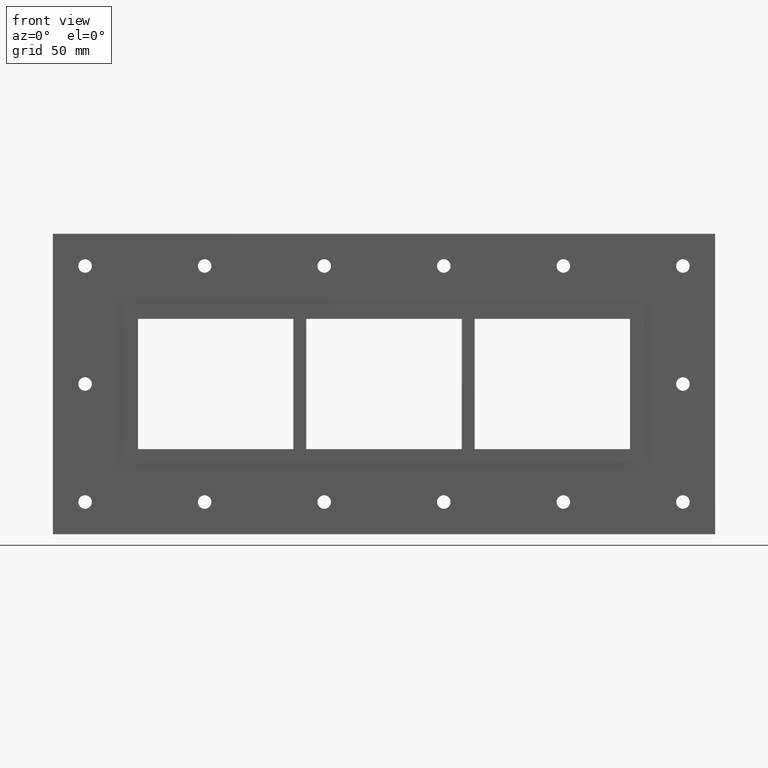
[diagram: clean part render]
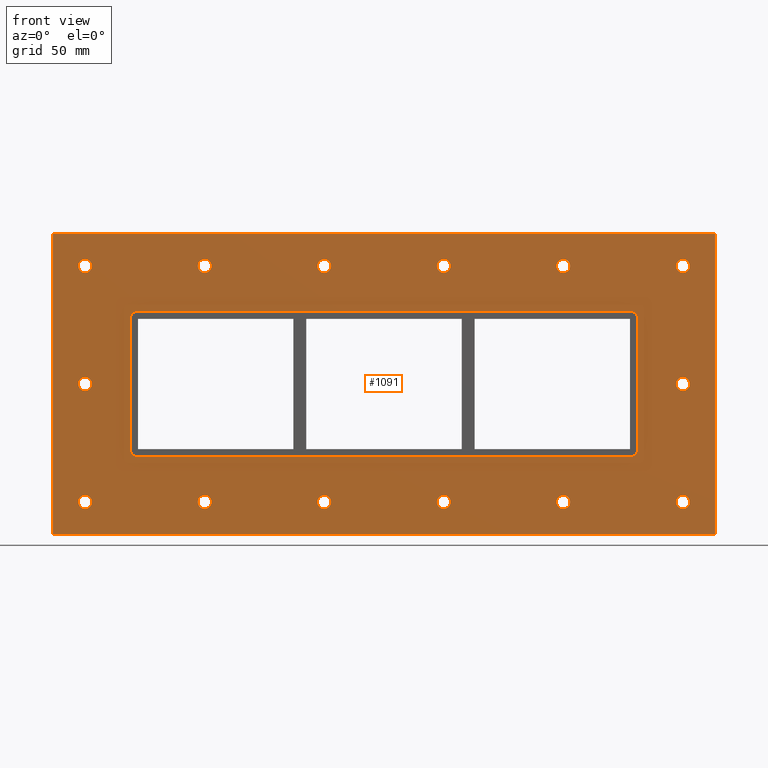
[diagram: same view with one face highlighted and labeled with its STEP entity id]
A machine part, front view. The second image highlights one B-rep face of the part: STEP entity #1091.
In plain terms, the highlighted planar face has unit normal (0, 1, 0).
Its self-contained STEP definition (entity closure, byte-faithful):
#84=CARTESIAN_POINT('',(-226.5000000000002,0.0,-91.499999999999986));
#85=VERTEX_POINT('',#84);
#86=CARTESIAN_POINT('',(-231.75000000000017,0.0,-91.499999999999986));
#87=DIRECTION('',(0.0,1.0,0.0));
#88=DIRECTION('',(1.0,0.0,0.0));
#89=AXIS2_PLACEMENT_3D('',#86,#87,#88);
#90=CIRCLE('',#89,5.25);
#91=EDGE_CURVE('',#85,#85,#90,.T.);
#112=CARTESIAN_POINT('',(236.99999999999989,0.0,1.776357E-014));
#113=VERTEX_POINT('',#112);
#114=CARTESIAN_POINT('',(231.74999999999989,0.0,1.776357E-014));
#115=DIRECTION('',(0.0,1.0,0.0));
#116=DIRECTION('',(1.0,0.0,0.0));
#117=AXIS2_PLACEMENT_3D('',#114,#115,#116);
#118=CIRCLE('',#117,5.25);
#119=EDGE_CURVE('',#113,#113,#118,.T.);
#140=CARTESIAN_POINT('',(-226.5000000000002,0.0,1.776357E-014));
#141=VERTEX_POINT('',#140);
#142=CARTESIAN_POINT('',(-231.75000000000017,0.0,1.776357E-014));
#143=DIRECTION('',(0.0,1.0,0.0));
#144=DIRECTION('',(1.0,0.0,0.0));
#145=AXIS2_PLACEMENT_3D('',#142,#143,#144);
#146=CIRCLE('',#145,5.25);
#147=EDGE_CURVE('',#141,#141,#146,.T.);
#168=CARTESIAN_POINT('',(-133.80000000000015,0.0,91.500000000000028));
#169=VERTEX_POINT('',#168);
#170=CARTESIAN_POINT('',(-139.05000000000013,0.0,91.500000000000028));
#171=DIRECTION('',(0.0,1.0,0.0));
#172=DIRECTION('',(1.0,0.0,0.0));
#173=AXIS2_PLACEMENT_3D('',#170,#171,#172);
#174=CIRCLE('',#173,5.25);
#175=EDGE_CURVE('',#169,#169,#174,.T.);
#196=CARTESIAN_POINT('',(-133.80000000000015,0.0,-91.499999999999986));
#197=VERTEX_POINT('',#196);
#198=CARTESIAN_POINT('',(-139.05000000000013,0.0,-91.499999999999986));
#199=DIRECTION('',(0.0,1.0,0.0));
#200=DIRECTION('',(1.0,0.0,0.0));
#201=AXIS2_PLACEMENT_3D('',#198,#199,#200);
#202=CIRCLE('',#201,5.25);
#203=EDGE_CURVE('',#197,#197,#202,.T.);
#224=CARTESIAN_POINT('',(-41.100000000000122,0.0,91.500000000000028));
#225=VERTEX_POINT('',#224);
#226=CARTESIAN_POINT('',(-46.350000000000108,0.0,91.500000000000028));
#227=DIRECTION('',(0.0,1.0,0.0));
#228=DIRECTION('',(1.0,0.0,0.0));
#229=AXIS2_PLACEMENT_3D('',#226,#227,#228);
#230=CIRCLE('',#229,5.25);
#231=EDGE_CURVE('',#225,#225,#230,.T.);
#252=CARTESIAN_POINT('',(-41.100000000000122,0.0,-91.499999999999986));
#253=VERTEX_POINT('',#252);
#254=CARTESIAN_POINT('',(-46.350000000000108,0.0,-91.499999999999986));
#255=DIRECTION('',(0.0,1.0,0.0));
#256=DIRECTION('',(1.0,0.0,0.0));
#257=AXIS2_PLACEMENT_3D('',#254,#255,#256);
#258=CIRCLE('',#257,5.25);
#259=EDGE_CURVE('',#253,#253,#258,.T.);
#280=CARTESIAN_POINT('',(51.599999999999859,0.0,91.500000000000028));
#281=VERTEX_POINT('',#280);
#282=CARTESIAN_POINT('',(46.349999999999874,0.0,91.500000000000028));
#283=DIRECTION('',(0.0,1.0,0.0));
#284=DIRECTION('',(1.0,0.0,0.0));
#285=AXIS2_PLACEMENT_3D('',#282,#283,#284);
#286=CIRCLE('',#285,5.25);
#287=EDGE_CURVE('',#281,#281,#286,.T.);
#308=CARTESIAN_POINT('',(51.599999999999859,0.0,-91.499999999999986));
#309=VERTEX_POINT('',#308);
#310=CARTESIAN_POINT('',(46.349999999999874,0.0,-91.499999999999986));
#311=DIRECTION('',(0.0,1.0,0.0));
#312=DIRECTION('',(1.0,0.0,0.0));
#313=AXIS2_PLACEMENT_3D('',#310,#311,#312);
#314=CIRCLE('',#313,5.25);
#315=EDGE_CURVE('',#309,#309,#314,.T.);
#336=CARTESIAN_POINT('',(144.29999999999987,0.0,91.500000000000028));
#337=VERTEX_POINT('',#336);
#338=CARTESIAN_POINT('',(139.0499999999999,0.0,91.500000000000028));
#339=DIRECTION('',(0.0,1.0,0.0));
#340=DIRECTION('',(1.0,0.0,0.0));
#341=AXIS2_PLACEMENT_3D('',#338,#339,#340);
#342=CIRCLE('',#341,5.25);
#343=EDGE_CURVE('',#337,#337,#342,.T.);
#364=CARTESIAN_POINT('',(144.29999999999987,0.0,-91.499999999999986));
#365=VERTEX_POINT('',#364);
#366=CARTESIAN_POINT('',(139.0499999999999,0.0,-91.499999999999986));
#367=DIRECTION('',(0.0,1.0,0.0));
#368=DIRECTION('',(1.0,0.0,0.0));
#369=AXIS2_PLACEMENT_3D('',#366,#367,#368);
#370=CIRCLE('',#369,5.25);
#371=EDGE_CURVE('',#365,#365,#370,.T.);
#392=CARTESIAN_POINT('',(236.99999999999989,0.0,-91.499999999999986));
#393=VERTEX_POINT('',#392);
#394=CARTESIAN_POINT('',(231.74999999999989,0.0,-91.499999999999986));
#395=DIRECTION('',(0.0,1.0,0.0));
#396=DIRECTION('',(1.0,0.0,0.0));
#397=AXIS2_PLACEMENT_3D('',#394,#395,#396);
#398=CIRCLE('',#397,5.25);
#399=EDGE_CURVE('',#393,#393,#398,.T.);
#420=CARTESIAN_POINT('',(-226.5000000000002,0.0,91.500000000000028));
#421=VERTEX_POINT('',#420);
#422=CARTESIAN_POINT('',(-231.75000000000017,0.0,91.500000000000028));
#423=DIRECTION('',(0.0,1.0,0.0));
#424=DIRECTION('',(1.0,0.0,0.0));
#425=AXIS2_PLACEMENT_3D('',#422,#423,#424);
#426=CIRCLE('',#425,5.25);
#427=EDGE_CURVE('',#421,#421,#426,.T.);
#448=CARTESIAN_POINT('',(236.99999999999989,0.0,91.500000000000028));
#449=VERTEX_POINT('',#448);
#450=CARTESIAN_POINT('',(231.74999999999989,0.0,91.500000000000028));
#451=DIRECTION('',(0.0,1.0,0.0));
#452=DIRECTION('',(1.0,0.0,0.0));
#453=AXIS2_PLACEMENT_3D('',#450,#451,#452);
#454=CIRCLE('',#453,5.25);
#455=EDGE_CURVE('',#449,#449,#454,.T.);
#940=CARTESIAN_POINT('',(-2.855497E-014,0.0,-5.710993E-015));
#941=DIRECTION('',(0.0,1.0,0.0));
#942=DIRECTION('',(0.0,0.0,1.0));
#943=AXIS2_PLACEMENT_3D('',#940,#941,#942);
#944=PLANE('',#943);
#945=CARTESIAN_POINT('',(-256.75000000000006,0.0,116.49999999999997));
#946=VERTEX_POINT('',#945);
#947=CARTESIAN_POINT('',(256.75,0.0,116.49999999999997));
#948=VERTEX_POINT('',#947);
#949=CARTESIAN_POINT('',(-256.75000000000006,0.0,116.49999999999997));
#950=DIRECTION('',(1.0,0.0,0.0));
#951=VECTOR('',#950,513.50000000000011);
#952=LINE('',#949,#951);
#953=EDGE_CURVE('',#946,#948,#952,.T.);
#954=ORIENTED_EDGE('',*,*,#953,.F.);
#955=CARTESIAN_POINT('',(-256.75000000000006,0.0,-116.49999999999999));
#956=VERTEX_POINT('',#955);
#957=CARTESIAN_POINT('',(-256.75000000000006,0.0,-116.49999999999999));
#958=DIRECTION('',(0.0,0.0,1.0));
#959=VECTOR('',#958,232.99999999999997);
#960=LINE('',#957,#959);
#961=EDGE_CURVE('',#956,#946,#960,.T.);
#962=ORIENTED_EDGE('',*,*,#961,.F.);
#963=CARTESIAN_POINT('',(256.75,0.0,-116.49999999999999));
#964=VERTEX_POINT('',#963);
#965=CARTESIAN_POINT('',(256.75,0.0,-116.49999999999999));
#966=DIRECTION('',(-1.0,0.0,0.0));
#967=VECTOR('',#966,513.50000000000011);
#968=LINE('',#965,#967);
#969=EDGE_CURVE('',#964,#956,#968,.T.);
#970=ORIENTED_EDGE('',*,*,#969,.F.);
#971=CARTESIAN_POINT('',(256.75,0.0,116.49999999999997));
#972=DIRECTION('',(0.0,0.0,-1.0));
#973=VECTOR('',#972,232.99999999999997);
#974=LINE('',#971,#973);
#975=EDGE_CURVE('',#948,#964,#974,.T.);
#976=ORIENTED_EDGE('',*,*,#975,.F.);
#977=EDGE_LOOP('',(#954,#962,#970,#976));
#978=FACE_OUTER_BOUND('',#977,.T.);
#979=ORIENTED_EDGE('',*,*,#91,.T.);
#980=EDGE_LOOP('',(#979));
#981=FACE_BOUND('',#980,.T.);
#982=ORIENTED_EDGE('',*,*,#119,.T.);
#983=EDGE_LOOP('',(#982));
#984=FACE_BOUND('',#983,.T.);
#985=ORIENTED_EDGE('',*,*,#147,.T.);
#986=EDGE_LOOP('',(#985));
#987=FACE_BOUND('',#986,.T.);
#988=ORIENTED_EDGE('',*,*,#175,.T.);
#989=EDGE_LOOP('',(#988));
#990=FACE_BOUND('',#989,.T.);
#991=ORIENTED_EDGE('',*,*,#203,.T.);
#992=EDGE_LOOP('',(#991));
#993=FACE_BOUND('',#992,.T.);
#994=ORIENTED_EDGE('',*,*,#231,.T.);
#995=EDGE_LOOP('',(#994));
#996=FACE_BOUND('',#995,.T.);
#997=ORIENTED_EDGE('',*,*,#259,.T.);
#998=EDGE_LOOP('',(#997));
#999=FACE_BOUND('',#998,.T.);
#1000=ORIENTED_EDGE('',*,*,#287,.T.);
#1001=EDGE_LOOP('',(#1000));
#1002=FACE_BOUND('',#1001,.T.);
#1003=ORIENTED_EDGE('',*,*,#315,.T.);
#1004=EDGE_LOOP('',(#1003));
#1005=FACE_BOUND('',#1004,.T.);
#1006=ORIENTED_EDGE('',*,*,#343,.T.);
#1007=EDGE_LOOP('',(#1006));
#1008=FACE_BOUND('',#1007,.T.);
#1009=ORIENTED_EDGE('',*,*,#371,.T.);
#1010=EDGE_LOOP('',(#1009));
#1011=FACE_BOUND('',#1010,.T.);
#1012=ORIENTED_EDGE('',*,*,#399,.T.);
#1013=EDGE_LOOP('',(#1012));
#1014=FACE_BOUND('',#1013,.T.);
#1015=ORIENTED_EDGE('',*,*,#427,.T.);
#1016=EDGE_LOOP('',(#1015));
#1017=FACE_BOUND('',#1016,.T.);
#1018=ORIENTED_EDGE('',*,*,#455,.T.);
#1019=EDGE_LOOP('',(#1018));
#1020=FACE_BOUND('',#1019,.T.);
#1021=CARTESIAN_POINT('',(-196.75000000000006,0.0,-50.499999999999986));
#1022=VERTEX_POINT('',#1021);
#1023=CARTESIAN_POINT('',(-190.75000000000003,0.0,-56.499999999999986));
#1024=VERTEX_POINT('',#1023);
#1025=CARTESIAN_POINT('',(-190.75000000000003,0.0,-50.499999999999986));
#1026=DIRECTION('',(0.0,-1.0,0.0));
#1027=DIRECTION('',(-0.707106781186549,0.0,-0.707106781186546));
#1028=AXIS2_PLACEMENT_3D('',#1025,#1026,#1027);
#1029=CIRCLE('',#1028,6.000000000000001);
#1030=EDGE_CURVE('',#1022,#1024,#1029,.T.);
#1031=ORIENTED_EDGE('',*,*,#1030,.F.);
#1032=CARTESIAN_POINT('',(-196.75000000000006,0.0,50.499999999999986));
#1033=VERTEX_POINT('',#1032);
#1034=CARTESIAN_POINT('',(-196.75000000000006,0.0,50.499999999999986));
#1035=DIRECTION('',(0.0,0.0,-1.0));
#1036=VECTOR('',#1035,100.99999999999997);
#1037=LINE('',#1034,#1036);
#1038=EDGE_CURVE('',#1033,#1022,#1037,.T.);
#1039=ORIENTED_EDGE('',*,*,#1038,.F.);
#1040=CARTESIAN_POINT('',(-190.75000000000003,0.0,56.499999999999986));
#1041=VERTEX_POINT('',#1040);
#1042=CARTESIAN_POINT('',(-190.75000000000003,0.0,50.499999999999986));
#1043=DIRECTION('',(0.0,-1.0,0.0));
#1044=DIRECTION('',(-0.707106781186549,0.0,0.707106781186546));
#1045=AXIS2_PLACEMENT_3D('',#1042,#1043,#1044);
#1046=CIRCLE('',#1045,6.000000000000001);
#1047=EDGE_CURVE('',#1041,#1033,#1046,.T.);
#1048=ORIENTED_EDGE('',*,*,#1047,.F.);
#1049=CARTESIAN_POINT('',(190.75000000000003,0.0,56.499999999999986));
#1050=VERTEX_POINT('',#1049);
#1051=CARTESIAN_POINT('',(190.75000000000006,0.0,56.499999999999986));
#1052=DIRECTION('',(-1.0,0.0,0.0));
#1053=VECTOR('',#1052,381.50000000000011);
#1054=LINE('',#1051,#1053);
#1055=EDGE_CURVE('',#1050,#1041,#1054,.T.);
#1056=ORIENTED_EDGE('',*,*,#1055,.F.);
#1057=CARTESIAN_POINT('',(196.75000000000006,0.0,50.499999999999986));
#1058=VERTEX_POINT('',#1057);
#1059=CARTESIAN_POINT('',(190.75000000000003,0.0,50.499999999999986));
#1060=DIRECTION('',(0.0,-1.0,0.0));
#1061=DIRECTION('',(0.707106781186549,0.0,0.707106781186546));
#1062=AXIS2_PLACEMENT_3D('',#1059,#1060,#1061);
#1063=CIRCLE('',#1062,6.000000000000001);
#1064=EDGE_CURVE('',#1058,#1050,#1063,.T.);
#1065=ORIENTED_EDGE('',*,*,#1064,.F.);
#1066=CARTESIAN_POINT('',(196.75000000000006,0.0,-50.499999999999986));
#1067=VERTEX_POINT('',#1066);
#1068=CARTESIAN_POINT('',(196.75000000000006,0.0,-50.5));
#1069=DIRECTION('',(0.0,0.0,1.0));
#1070=VECTOR('',#1069,100.99999999999999);
#1071=LINE('',#1068,#1070);
#1072=EDGE_CURVE('',#1067,#1058,#1071,.T.);
#1073=ORIENTED_EDGE('',*,*,#1072,.F.);
#1074=CARTESIAN_POINT('',(190.75000000000003,0.0,-56.499999999999986));
#1075=VERTEX_POINT('',#1074);
#1076=CARTESIAN_POINT('',(190.75000000000003,0.0,-50.499999999999986));
#1077=DIRECTION('',(0.0,-1.0,0.0));
#1078=DIRECTION('',(0.707106781186549,0.0,-0.707106781186546));
#1079=AXIS2_PLACEMENT_3D('',#1076,#1077,#1078);
#1080=CIRCLE('',#1079,6.000000000000001);
#1081=EDGE_CURVE('',#1075,#1067,#1080,.T.);
#1082=ORIENTED_EDGE('',*,*,#1081,.F.);
#1083=CARTESIAN_POINT('',(-190.75,0.0,-56.499999999999986));
#1084=DIRECTION('',(1.0,0.0,0.0));
#1085=VECTOR('',#1084,381.5);
#1086=LINE('',#1083,#1085);
#1087=EDGE_CURVE('',#1024,#1075,#1086,.T.);
#1088=ORIENTED_EDGE('',*,*,#1087,.F.);
#1089=EDGE_LOOP('',(#1031,#1039,#1048,#1056,#1065,#1073,#1082,#1088));
#1090=FACE_BOUND('',#1089,.T.);
#1091=ADVANCED_FACE('',(#978,#981,#984,#987,#990,#993,#996,#999,#1002,#1005,#1008,#1011,#1014,#1017,#1020,#1090),#944,.F.);